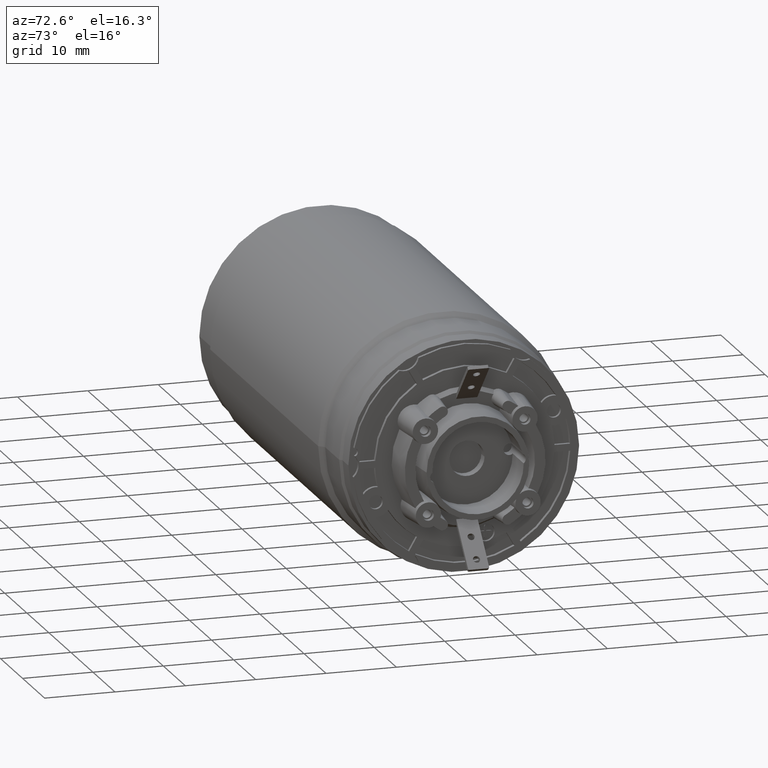
[diagram: clean part render]
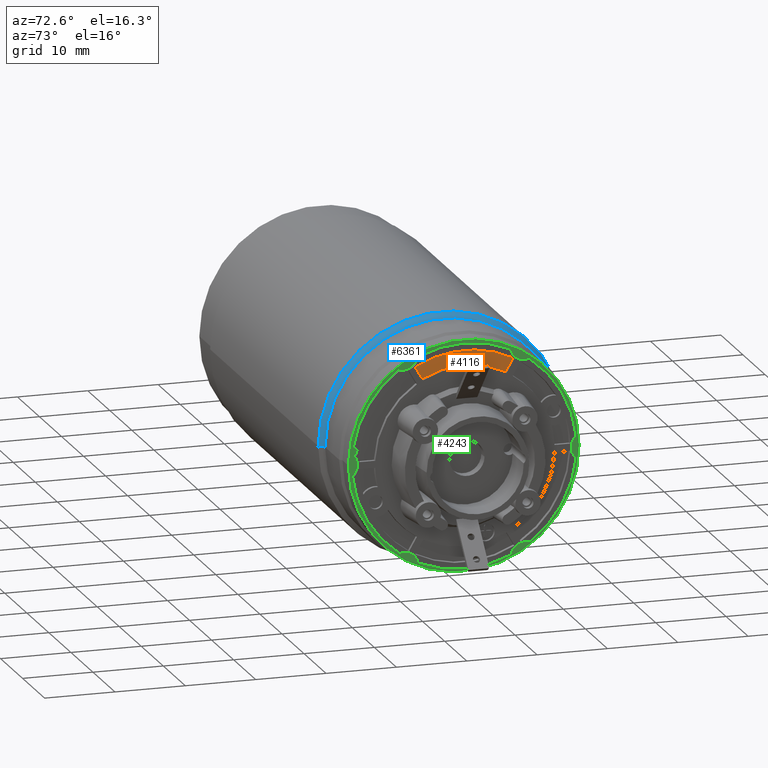
[diagram: same view with three faces highlighted in distinct colors, each labeled with its STEP entity id]
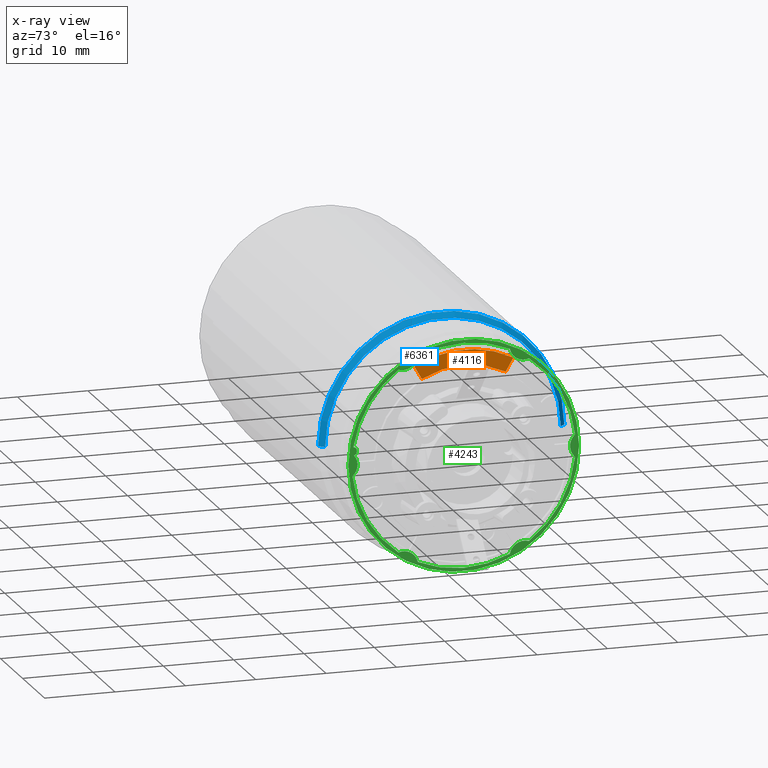
[diagram: x-ray of the same camera — body ghosted, the three highlighted faces saturated]
A machine part, auxiliary view with three faces highlighted in distinct colors.
The next image is the same camera in x-ray (body ghosted, the three faces saturated) — at least one of them is partly hidden behind the body in this view.
Their STEP definitions:

[orange] entity #4116 — the highlighted planar face has unit normal (-1, 0, 0).
#397=CARTESIAN_POINT('',(6.74E0,0.E0,0.E0));
#398=DIRECTION('',(-1.E0,0.E0,0.E0));
#399=DIRECTION('',(0.E0,-4.657723526939E-1,8.849045798650E-1));
#400=AXIS2_PLACEMENT_3D('',#397,#398,#399);
#1935=CARTESIAN_POINT('',(6.74E0,0.E0,0.E0));
#1936=DIRECTION('',(-1.E0,0.E0,0.E0));
#1937=DIRECTION('',(0.E0,-4.707685711420E-1,8.822567383845E-1));
#1938=AXIS2_PLACEMENT_3D('',#1935,#1936,#1937);
#2059=DIRECTION('',(0.E0,-5.E-1,8.660254037844E-1));
#2060=VECTOR('',#2059,2.163925426802E0);
#2061=CARTESIAN_POINT('',(6.74E0,-5.958972397170E0,1.132124295280E1));
#2062=LINE('',#2061,#2060);
#2063=DIRECTION('',(0.E0,-5.E-1,-8.660254037844E-1));
#2064=VECTOR('',#2063,2.163925426802E0);
#2065=CARTESIAN_POINT('',(6.74E0,7.040935110571E0,1.319525734430E1));
#2066=LINE('',#2065,#2064);
#3460=CARTESIAN_POINT('',(6.74E0,-7.040935110571E0,1.319525734430E1));
#3461=CARTESIAN_POINT('',(6.74E0,7.040935110571E0,1.319525734430E1));
#3462=VERTEX_POINT('',#3460);
#3463=VERTEX_POINT('',#3461);
#3492=CARTESIAN_POINT('',(6.74E0,-5.958972397170E0,1.132124295280E1));
#3493=CARTESIAN_POINT('',(6.74E0,5.958972397170E0,1.132124295280E1));
#3494=VERTEX_POINT('',#3492);
#3495=VERTEX_POINT('',#3493);
#4102=CARTESIAN_POINT('',(6.74E0,0.E0,0.E0));
#4103=DIRECTION('',(-1.E0,0.E0,0.E0));
#4104=DIRECTION('',(0.E0,1.E0,0.E0));
#4105=AXIS2_PLACEMENT_3D('',#4102,#4103,#4104);
#4106=PLANE('',#4105);
#4108=ORIENTED_EDGE('',*,*,#4107,.T.);
#4110=ORIENTED_EDGE('',*,*,#4109,.T.);
#4111=ORIENTED_EDGE('',*,*,#3984,.F.);
#4113=ORIENTED_EDGE('',*,*,#4112,.T.);
#4114=EDGE_LOOP('',(#4108,#4110,#4111,#4113));
#4115=FACE_OUTER_BOUND('',#4114,.F.);
#4116=ADVANCED_FACE('',(#4115),#4106,.F.);
#401=CIRCLE('',#400,1.279374433176E1);
#1939=CIRCLE('',#1938,1.495625566824E1);
#3984=EDGE_CURVE('',#3494,#3495,#401,.T.);
#4107=EDGE_CURVE('',#3462,#3463,#1939,.T.);
#4109=EDGE_CURVE('',#3463,#3495,#2066,.T.);
#4112=EDGE_CURVE('',#3494,#3462,#2062,.T.);

[blue] entity #6361 — the highlighted conical surface has half-angle 45 deg.
#2166=DIRECTION('',(-7.071067811865E-1,7.071067811866E-1,0.E0));
#2167=VECTOR('',#2166,1.060660171780E0);
#2168=CARTESIAN_POINT('',(-2.71E0,1.675E1,0.E0));
#2169=LINE('',#2168,#2167);
#2170=CARTESIAN_POINT('',(-2.71E0,0.E0,0.E0));
#2171=DIRECTION('',(1.E0,0.E0,0.E0));
#2172=DIRECTION('',(0.E0,1.E0,0.E0));
#2173=AXIS2_PLACEMENT_3D('',#2170,#2171,#2172);
#2175=DIRECTION('',(-7.071067811865E-1,-7.071067811866E-1,0.E0));
#2176=VECTOR('',#2175,1.060660171780E0);
#2177=CARTESIAN_POINT('',(-2.71E0,-1.675E1,0.E0));
#2178=LINE('',#2177,#2176);
#2183=CARTESIAN_POINT('',(-3.46E0,0.E0,0.E0));
#2184=DIRECTION('',(1.E0,0.E0,0.E0));
#2185=DIRECTION('',(0.E0,1.E0,0.E0));
#2186=AXIS2_PLACEMENT_3D('',#2183,#2184,#2185);
#3382=CARTESIAN_POINT('',(-2.71E0,1.675E1,0.E0));
#3383=VERTEX_POINT('',#3382);
#3384=CARTESIAN_POINT('',(-3.46E0,1.75E1,0.E0));
#3385=VERTEX_POINT('',#3384);
#3400=CARTESIAN_POINT('',(-2.71E0,-1.675E1,0.E0));
#3401=VERTEX_POINT('',#3400);
#3402=CARTESIAN_POINT('',(-3.46E0,-1.75E1,0.E0));
#3403=VERTEX_POINT('',#3402);
#6349=CARTESIAN_POINT('',(-3.085E0,0.E0,0.E0));
#6350=DIRECTION('',(-1.E0,0.E0,0.E0));
#6351=DIRECTION('',(0.E0,1.E0,0.E0));
#6352=AXIS2_PLACEMENT_3D('',#6349,#6350,#6351);
#6353=CONICAL_SURFACE('',#6352,1.7125E1,4.5E1);
#6354=ORIENTED_EDGE('',*,*,#6339,.F.);
#6355=ORIENTED_EDGE('',*,*,#6316,.T.);
#6356=ORIENTED_EDGE('',*,*,#6343,.T.);
#6358=ORIENTED_EDGE('',*,*,#6357,.F.);
#6359=EDGE_LOOP('',(#6354,#6355,#6356,#6358));
#6360=FACE_OUTER_BOUND('',#6359,.F.);
#6361=ADVANCED_FACE('',(#6360),#6353,.T.);
#2174=CIRCLE('',#2173,1.675E1);
#2187=CIRCLE('',#2186,1.75E1);
#6316=EDGE_CURVE('',#3383,#3401,#2174,.T.);
#6339=EDGE_CURVE('',#3383,#3385,#2169,.T.);
#6343=EDGE_CURVE('',#3401,#3403,#2178,.T.);
#6357=EDGE_CURVE('',#3385,#3403,#2187,.T.);

[green] entity #4243 — the highlighted planar face has unit normal (-1, 0, 0).
#2111=CARTESIAN_POINT('',(6.74E0,0.E0,0.E0));
#2112=DIRECTION('',(1.E0,0.E0,0.E0));
#2113=DIRECTION('',(0.E0,1.E0,0.E0));
#2114=AXIS2_PLACEMENT_3D('',#2111,#2112,#2113);
#2120=CARTESIAN_POINT('',(6.74E0,0.E0,0.E0));
#2121=DIRECTION('',(-1.E0,0.E0,0.E0));
#2122=DIRECTION('',(0.E0,1.E0,0.E0));
#2123=AXIS2_PLACEMENT_3D('',#2120,#2121,#2122);
#2555=CARTESIAN_POINT('',(6.74E0,0.E0,0.E0));
#2556=DIRECTION('',(-1.E0,0.E0,0.E0));
#2557=DIRECTION('',(0.E0,-9.872413957727E-1,1.592307334428E-1));
#2558=AXIS2_PLACEMENT_3D('',#2555,#2556,#2557);
#2573=CARTESIAN_POINT('',(6.74E0,0.E0,0.E0));
#2574=DIRECTION('',(-1.E0,0.E0,0.E0));
#2575=DIRECTION('',(0.E0,-4.112530614452E-1,9.115212117400E-1));
#2576=AXIS2_PLACEMENT_3D('',#2573,#2574,#2575);
#2591=CARTESIAN_POINT('',(6.74E0,0.E0,0.E0));
#2592=DIRECTION('',(-1.E0,0.E0,0.E0));
#2593=DIRECTION('',(0.E0,5.837750994632E-1,8.119154101547E-1));
#2594=AXIS2_PLACEMENT_3D('',#2591,#2592,#2593);
#2609=CARTESIAN_POINT('',(6.74E0,0.E0,0.E0));
#2610=DIRECTION('',(-1.E0,0.E0,0.E0));
#2611=DIRECTION('',(0.E0,9.950269877626E-1,-9.960569072112E-2));
#2612=AXIS2_PLACEMENT_3D('',#2609,#2610,#2611);
#2627=CARTESIAN_POINT('',(6.74E0,0.E0,0.E0));
#2628=DIRECTION('',(-1.E0,0.E0,0.E0));
#2629=DIRECTION('',(0.E0,4.112530614452E-1,-9.115212117400E-1));
#2630=AXIS2_PLACEMENT_3D('',#2627,#2628,#2629);
#2645=CARTESIAN_POINT('',(6.74E0,0.E0,0.E0));
#2646=DIRECTION('',(-1.E0,0.E0,0.E0));
#2647=DIRECTION('',(0.E0,-5.837750994705E-1,-8.119154101495E-1));
#2648=AXIS2_PLACEMENT_3D('',#2645,#2646,#2647);
#2663=CARTESIAN_POINT('',(6.74E0,-8.6E0,1.489563694509E1));
#2664=DIRECTION('',(1.E0,0.E0,0.E0));
#2665=DIRECTION('',(0.E0,-3.247700386852E-1,-9.457930122244E-1));
#2666=AXIS2_PLACEMENT_3D('',#2663,#2664,#2665);
#2668=CARTESIAN_POINT('',(6.74E0,-1.578148381110E1,1.937722560142E0));
#2669=DIRECTION('',(1.E0,0.E0,0.E0));
#2670=DIRECTION('',(0.E0,2.961045079206E-1,-9.551555477456E-1));
#2671=AXIS2_PLACEMENT_3D('',#2668,#2669,#2670);
#2682=CARTESIAN_POINT('',(6.74E0,-1.72E1,0.E0));
#2683=DIRECTION('',(1.E0,0.E0,0.E0));
#2684=DIRECTION('',(0.E0,6.566976363313E-1,-7.541539726322E-1));
#2685=AXIS2_PLACEMENT_3D('',#2682,#2683,#2684);
#2687=CARTESIAN_POINT('',(6.74E0,8.6E0,1.489563694509E1));
#2688=DIRECTION('',(1.E0,0.E0,0.E0));
#2689=DIRECTION('',(0.E0,-9.814647633867E-1,-1.916426837382E-1));
#2690=AXIS2_PLACEMENT_3D('',#2687,#2688,#2689);
#2692=CARTESIAN_POINT('',(6.74E0,1.72E1,0.E0));
#2693=DIRECTION('',(1.E0,0.E0,0.E0));
#2694=DIRECTION('',(0.E0,-6.566977401952E-1,7.541538821902E-1));
#2695=AXIS2_PLACEMENT_3D('',#2692,#2693,#2694);
#2697=CARTESIAN_POINT('',(6.74E0,8.6E0,-1.489563694509E1));
#2698=DIRECTION('',(1.E0,0.E0,0.E0));
#2699=DIRECTION('',(0.E0,3.247701022493E-1,9.457929903975E-1));
#2700=AXIS2_PLACEMENT_3D('',#2697,#2698,#2699);
#2702=CARTESIAN_POINT('',(6.74E0,-8.6E0,-1.489563694509E1));
#2703=DIRECTION('',(1.E0,0.E0,0.E0));
#2704=DIRECTION('',(0.E0,9.814647633856E-1,1.916426837434E-1));
#2705=AXIS2_PLACEMENT_3D('',#2702,#2703,#2704);
#3376=CARTESIAN_POINT('',(6.74E0,1.64E1,0.E0));
#3378=VERTEX_POINT('',#3376);
#3394=CARTESIAN_POINT('',(6.74E0,-1.64E1,0.E0));
#3396=VERTEX_POINT('',#3394);
#3412=CARTESIAN_POINT('',(6.74E0,-1.569713819279E1,2.531768661740E0));
#3413=CARTESIAN_POINT('',(6.74E0,-9.282024005285E0,1.290945507623E1));
#3414=VERTEX_POINT('',#3412);
#3415=VERTEX_POINT('',#3413);
#3416=CARTESIAN_POINT('',(6.74E0,-6.538923676979E0,1.449318726667E1));
#3417=CARTESIAN_POINT('',(6.74E0,6.538923676972E0,1.449318726667E1));
#3418=VERTEX_POINT('',#3416);
#3419=VERTEX_POINT('',#3417);
#3420=CARTESIAN_POINT('',(6.74E0,9.282024081465E0,1.290945502146E1));
#3421=CARTESIAN_POINT('',(6.74E0,1.582092910545E1,1.583730482209E0));
#3422=VERTEX_POINT('',#3420);
#3423=VERTEX_POINT('',#3421);
#3424=CARTESIAN_POINT('',(6.74E0,1.582092910543E1,-1.583730482466E0));
#3425=CARTESIAN_POINT('',(6.74E0,9.282024081581E0,-1.290945502138E1));
#3426=VERTEX_POINT('',#3424);
#3427=VERTEX_POINT('',#3425);
#3428=CARTESIAN_POINT('',(6.74E0,6.538923676979E0,-1.449318726667E1));
#3429=CARTESIAN_POINT('',(6.74E0,-6.538923676979E0,-1.449318726667E1));
#3430=VERTEX_POINT('',#3428);
#3431=VERTEX_POINT('',#3429);
#3432=CARTESIAN_POINT('',(6.74E0,-9.282024081582E0,-1.290945502138E1));
#3433=CARTESIAN_POINT('',(6.74E0,-1.582092905103E1,-1.583731025887E0));
#3434=VERTEX_POINT('',#3432);
#3435=VERTEX_POINT('',#3433);
#3512=CARTESIAN_POINT('',(6.74E0,-1.560382110634E1,1.364629231495E0));
#3513=VERTEX_POINT('',#3512);
#4204=CARTESIAN_POINT('',(6.74E0,0.E0,0.E0));
#4205=DIRECTION('',(-1.E0,0.E0,0.E0));
#4206=DIRECTION('',(0.E0,1.E0,0.E0));
#4207=AXIS2_PLACEMENT_3D('',#4204,#4205,#4206);
#4208=PLANE('',#4207);
#4210=ORIENTED_EDGE('',*,*,#4209,.F.);
#4212=ORIENTED_EDGE('',*,*,#4211,.T.);
#4213=EDGE_LOOP('',(#4210,#4212));
#4214=FACE_OUTER_BOUND('',#4213,.F.);
#4216=ORIENTED_EDGE('',*,*,#4215,.F.);
#4218=ORIENTED_EDGE('',*,*,#4217,.F.);
#4220=ORIENTED_EDGE('',*,*,#4219,.F.);
#4222=ORIENTED_EDGE('',*,*,#4221,.F.);
#4224=ORIENTED_EDGE('',*,*,#4223,.F.);
#4226=ORIENTED_EDGE('',*,*,#4225,.F.);
#4228=ORIENTED_EDGE('',*,*,#4227,.F.);
#4230=ORIENTED_EDGE('',*,*,#4229,.F.);
#4232=ORIENTED_EDGE('',*,*,#4231,.F.);
#4234=ORIENTED_EDGE('',*,*,#4233,.F.);
#4236=ORIENTED_EDGE('',*,*,#4235,.F.);
#4238=ORIENTED_EDGE('',*,*,#4237,.F.);
#4240=ORIENTED_EDGE('',*,*,#4239,.F.);
#4241=EDGE_LOOP('',(#4216,#4218,#4220,#4222,#4224,#4226,#4228,#4230,#4232,#4234,
#4236,#4238,#4240));
#4242=FACE_BOUND('',#4241,.F.);
#4243=ADVANCED_FACE('',(#4214,#4242),#4208,.F.);
#2115=CIRCLE('',#2114,1.64E1);
#2124=CIRCLE('',#2123,1.64E1);
#2559=CIRCLE('',#2558,1.59E1);
#2577=CIRCLE('',#2576,1.59E1);
#2595=CIRCLE('',#2594,1.59E1);
#2613=CIRCLE('',#2612,1.59E1);
#2631=CIRCLE('',#2630,1.59E1);
#2649=CIRCLE('',#2648,1.59E1);
#2667=CIRCLE('',#2666,2.1E0);
#2672=CIRCLE('',#2671,6.E-1);
#2686=CIRCLE('',#2685,2.1E0);
#2691=CIRCLE('',#2690,2.1E0);
#2696=CIRCLE('',#2695,2.1E0);
#2701=CIRCLE('',#2700,2.1E0);
#2706=CIRCLE('',#2705,2.1E0);
#4209=EDGE_CURVE('',#3378,#3396,#2115,.T.);
#4211=EDGE_CURVE('',#3378,#3396,#2124,.T.);
#4215=EDGE_CURVE('',#3422,#3423,#2595,.T.);
#4217=EDGE_CURVE('',#3419,#3422,#2691,.T.);
#4219=EDGE_CURVE('',#3418,#3419,#2577,.T.);
#4221=EDGE_CURVE('',#3415,#3418,#2667,.T.);
#4223=EDGE_CURVE('',#3414,#3415,#2559,.T.);
#4225=EDGE_CURVE('',#3513,#3414,#2672,.T.);
#4227=EDGE_CURVE('',#3435,#3513,#2686,.T.);
#4229=EDGE_CURVE('',#3434,#3435,#2649,.T.);
#4231=EDGE_CURVE('',#3431,#3434,#2706,.T.);
#4233=EDGE_CURVE('',#3430,#3431,#2631,.T.);
#4235=EDGE_CURVE('',#3427,#3430,#2701,.T.);
#4237=EDGE_CURVE('',#3426,#3427,#2613,.T.);
#4239=EDGE_CURVE('',#3423,#3426,#2696,.T.);